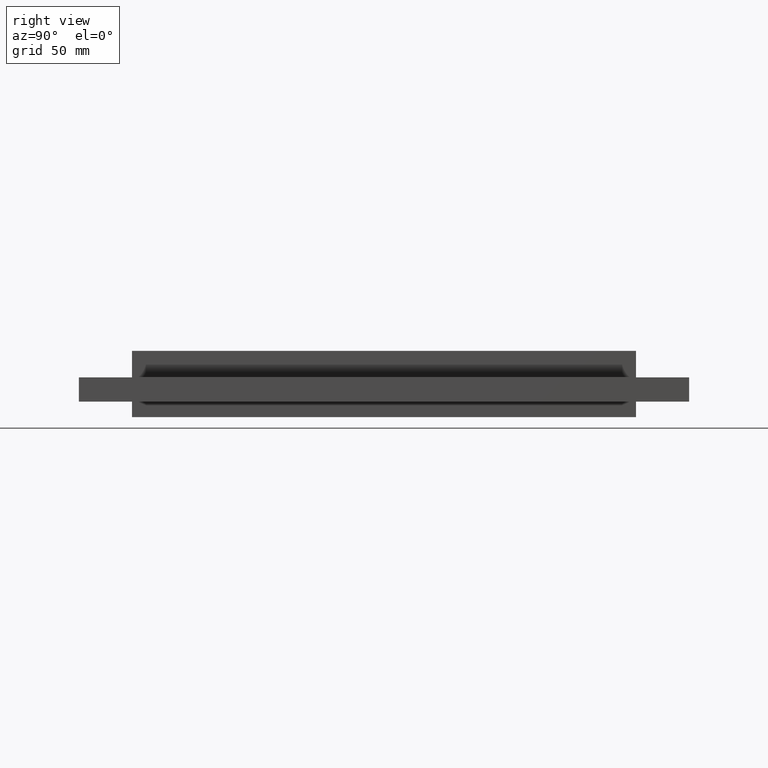
[diagram: clean part render]
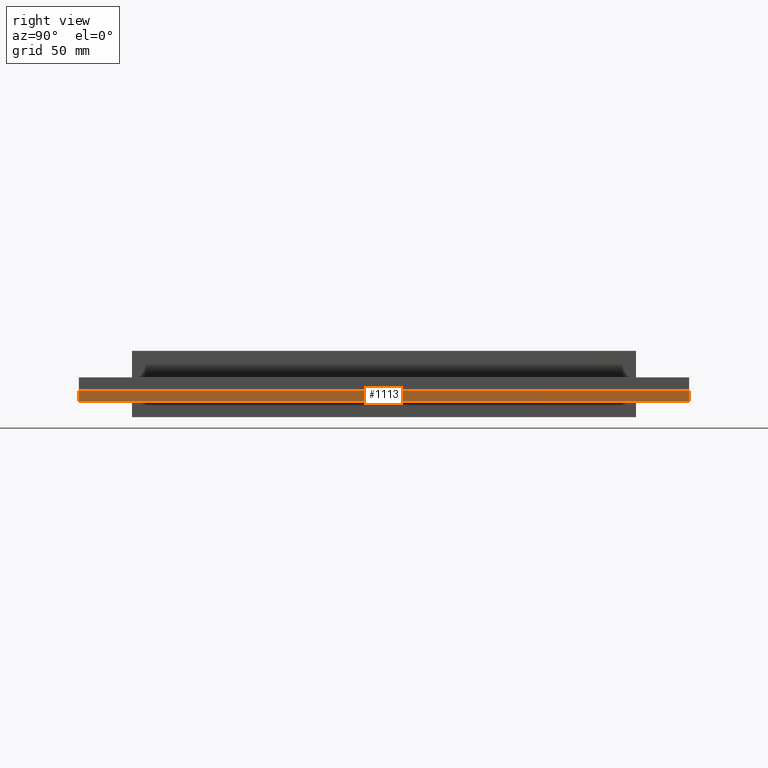
[diagram: same view with one face highlighted and labeled with its STEP entity id]
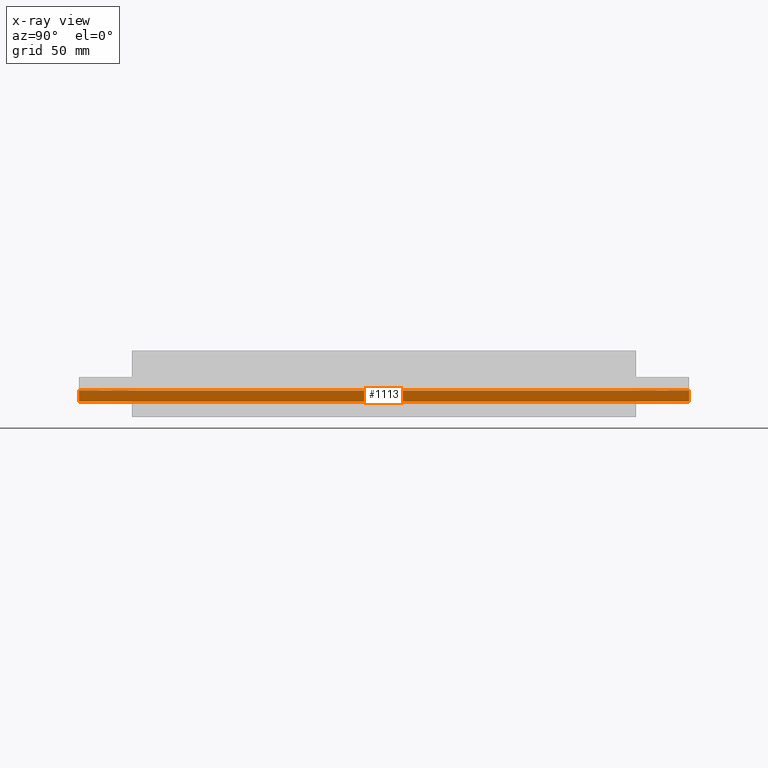
[diagram: x-ray of the same camera — body ghosted, the highlighted face saturated]
A machine part, right view. The second image highlights one B-rep face of the part: STEP entity #1113.
The next image is the same camera in x-ray: the body ghosted, the highlighted face saturated — about 0% of this face is hidden behind the body in this view.
In plain terms, the highlighted planar face has unit normal (1, -0, 0).
Its self-contained STEP definition (entity closure, byte-faithful):
#113=PLANE('',#1236);
#167=FACE_OUTER_BOUND('',#245,.T.);
#245=EDGE_LOOP('',(#987,#988,#989,#990));
#361=LINE('',#1825,#457);
#362=LINE('',#1828,#458);
#363=LINE('',#1830,#459);
#364=LINE('',#1831,#460);
#457=VECTOR('',#1528,10.);
#458=VECTOR('',#1531,10.);
#459=VECTOR('',#1532,10.);
#460=VECTOR('',#1533,10.);
#603=VERTEX_POINT('',#1821);
#604=VERTEX_POINT('',#1823);
#605=VERTEX_POINT('',#1827);
#606=VERTEX_POINT('',#1829);
#745=EDGE_CURVE('',#603,#604,#361,.T.);
#746=EDGE_CURVE('',#605,#603,#362,.T.);
#747=EDGE_CURVE('',#606,#604,#363,.T.);
#748=EDGE_CURVE('',#605,#606,#364,.T.);
#987=ORIENTED_EDGE('',*,*,#746,.T.);
#988=ORIENTED_EDGE('',*,*,#745,.T.);
#989=ORIENTED_EDGE('',*,*,#747,.F.);
#990=ORIENTED_EDGE('',*,*,#748,.F.);
#1113=ADVANCED_FACE('',(#167),#113,.T.);
#1236=AXIS2_PLACEMENT_3D('',#1826,#1529,#1530);
#1528=DIRECTION('',(0.,0.,-1.));
#1529=DIRECTION('center_axis',(1.,-6.00700380473514E-17,0.));
#1530=DIRECTION('ref_axis',(-6.00700380473514E-17,-1.,1.38777878078145E-16));
#1531=DIRECTION('',(-6.00700380473514E-17,-1.,1.38777878078145E-16));
#1532=DIRECTION('',(-6.00700380473514E-17,-1.,1.38777878078145E-16));
#1533=DIRECTION('',(0.,0.,-1.));
#1821=CARTESIAN_POINT('',(89.9999999999999,-138.,-3.));
#1823=CARTESIAN_POINT('',(89.9999999999999,-138.,-8.));
#1825=CARTESIAN_POINT('',(89.9999999999999,-138.,-3.));
#1826=CARTESIAN_POINT('Origin',(89.9999999999999,138.,-3.00000000000003));
#1827=CARTESIAN_POINT('',(89.9999999999999,138.,-3.00000000000003));
#1828=CARTESIAN_POINT('',(89.9999999999999,138.,-3.00000000000003));
#1829=CARTESIAN_POINT('',(89.9999999999999,138.,-8.00000000000003));
#1830=CARTESIAN_POINT('',(89.9999999999999,138.,-8.00000000000003));
#1831=CARTESIAN_POINT('',(89.9999999999999,138.,-3.00000000000003));